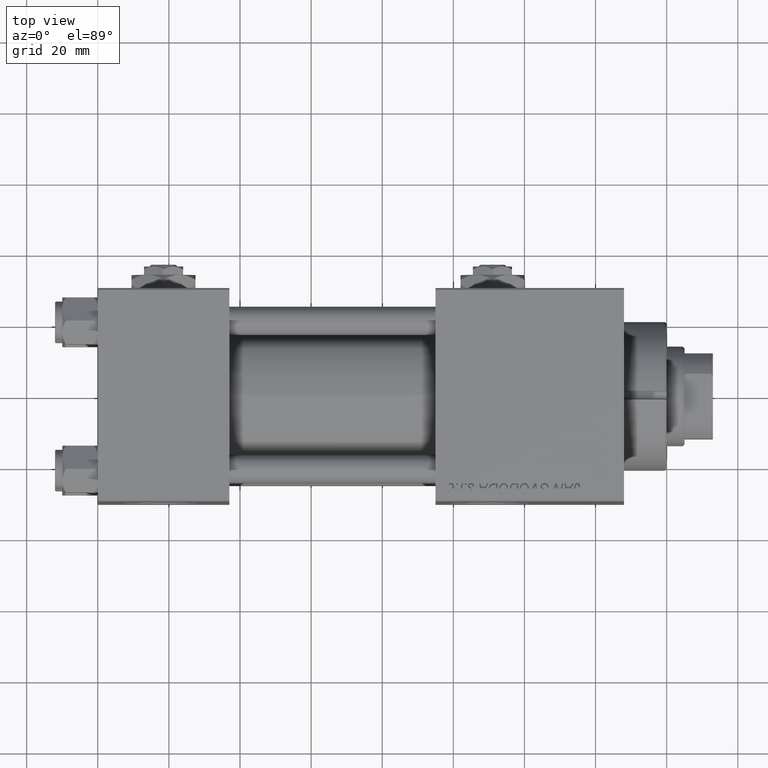
[diagram: clean part render]
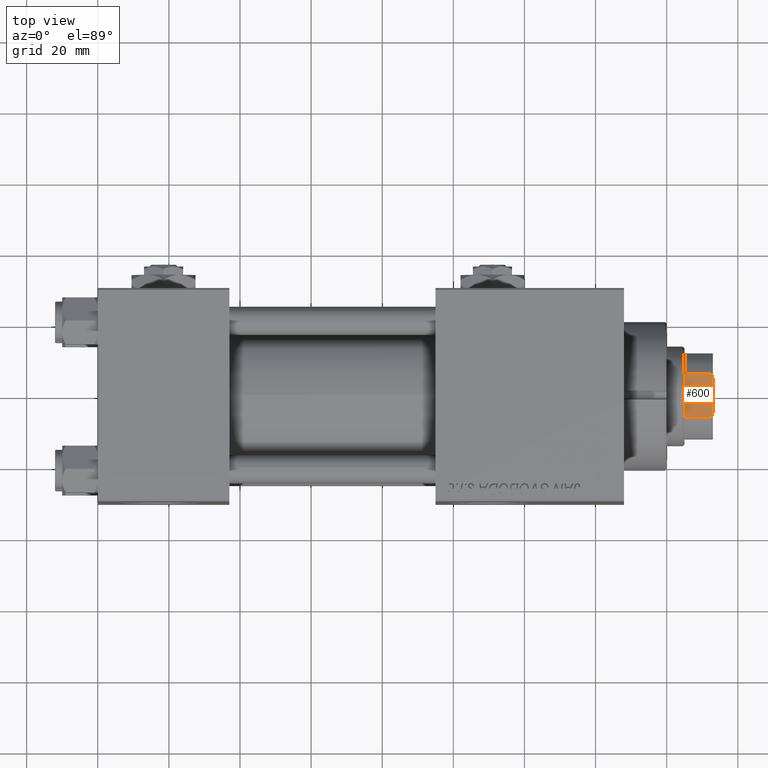
[diagram: same view with one face highlighted and labeled with its STEP entity id]
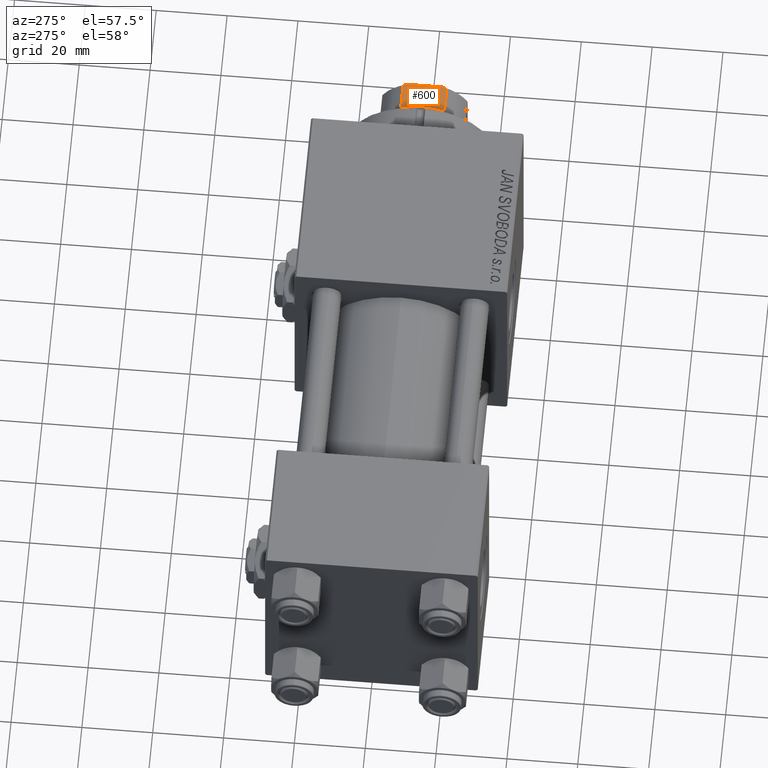
[diagram: same view with one face highlighted and labeled with its STEP entity id]
A machine part, top view. The second image highlights one B-rep face of the part: STEP entity #600.
A second angle (auxiliary view) of the same face is appended — the face is thin or edge-on in the first view.
In plain terms, the highlighted planar face has unit normal (0, 0, -1).
Its self-contained STEP definition (entity closure, byte-faithful):
#236 = VECTOR ( 'NONE', #44726, 1000.000000000000000 ) ;
#600 = ADVANCED_FACE ( 'NONE', ( #39463 ), #14548, .F. ) ;
#1109 = ORIENTED_EDGE ( 'NONE', *, *, #24806, .F. ) ;
#1662 = VERTEX_POINT ( 'NONE', #4682 ) ;
#2913 = VERTEX_POINT ( 'NONE', #3797 ) ;
#3797 = CARTESIAN_POINT ( 'NONE',  ( -5.000000000000031086, -12.00000000000000355, 136.0000000000000000 ) ) ;
#3947 = EDGE_CURVE ( 'NONE', #2913, #1662, #38028, .T. ) ;
#4682 = CARTESIAN_POINT ( 'NONE',  ( -6.184658438426496652, -11.99999999999999645, 135.5000000000000284 ) ) ;
#6571 = DIRECTION ( 'NONE',  ( 0.000000000000000000, -0.000000000000000000, 1.000000000000000000 ) ) ;
#7087 = DIRECTION ( 'NONE',  ( 0.000000000000000000, 1.000000000000000000, 0.000000000000000000 ) ) ;
#9420 = EDGE_CURVE ( 'NONE', #21232, #22285, #16846, .T. ) ;
#12552 = LINE ( 'NONE', #12811, #29946 ) ;
#12811 = CARTESIAN_POINT ( 'NONE',  ( -6.184658438426496652, -11.99999999999999645, -0.001000000000001000089 ) ) ;
#13198 = VERTEX_POINT ( 'NONE', #19895 ) ;
#13618 = CARTESIAN_POINT ( 'NONE',  ( -11.99999999999999822, -12.00000000000000355, 136.0000000000000000 ) ) ;
#13880 = CARTESIAN_POINT ( 'NONE',  ( -6.184658438426496652, -11.99999999999999645, 135.5000000000000284 ) ) ;
#14548 = PLANE ( 'NONE',  #33730 ) ;
#16361 = EDGE_CURVE ( 'NONE', #25564, #1662, #12552, .T. ) ;
#16846 = B_SPLINE_CURVE_WITH_KNOTS ( 'NONE', 3,
 ( #17844, #33499, #29516, #34025 ),
 .UNSPECIFIED., .F., .F.,
 ( 4, 4 ),
 ( 0.000000000000000000, 0.001285852097146072308 ),
 .UNSPECIFIED. ) ;
#17256 = EDGE_LOOP ( 'NONE', ( #34148, #29389, #1109, #31270, #39547, #41319 ) ) ;
#17844 = CARTESIAN_POINT ( 'NONE',  ( 6.184658438426496652, -11.99999999999999645, 135.5000000000000284 ) ) ;
#18602 = CARTESIAN_POINT ( 'NONE',  ( 5.000000000000053291, -12.00000000000000355, 136.0000000000000000 ) ) ;
#19895 = CARTESIAN_POINT ( 'NONE',  ( 6.184658438426496652, -11.99999999999999645, 128.0000000000000853 ) ) ;
#21232 = VERTEX_POINT ( 'NONE', #39980 ) ;
#21411 = VECTOR ( 'NONE', #28171, 1000.000000000000000 ) ;
#22004 = EDGE_CURVE ( 'NONE', #13198, #21232, #31897, .T. ) ;
#22285 = VERTEX_POINT ( 'NONE', #18602 ) ;
#24806 = EDGE_CURVE ( 'NONE', #2913, #22285, #40943, .T. ) ;
#25564 = VERTEX_POINT ( 'NONE', #47738 ) ;
#28171 = DIRECTION ( 'NONE',  ( -0.000000000000000000, -0.000000000000000000, 1.000000000000000000 ) ) ;
#28535 = LINE ( 'NONE', #52171, #236 ) ;
#29389 = ORIENTED_EDGE ( 'NONE', *, *, #9420, .T. ) ;
#29516 = CARTESIAN_POINT ( 'NONE',  ( 5.400255697127826160, -12.00000000000000355, 135.8460555011047006 ) ) ;
#29524 = DIRECTION ( 'NONE',  ( -0.000000000000000000, -0.000000000000000000, 1.000000000000000000 ) ) ;
#29535 = DIRECTION ( 'NONE',  ( 1.000000000000000000, 0.000000000000000000, 0.000000000000000000 ) ) ;
#29946 = VECTOR ( 'NONE', #29524, 1000.000000000000000 ) ;
#31270 = ORIENTED_EDGE ( 'NONE', *, *, #3947, .T. ) ;
#31897 = LINE ( 'NONE', #51562, #21411 ) ;
#33499 = CARTESIAN_POINT ( 'NONE',  ( 5.794808544282259888, -11.99999999999999645, 135.6785991435214385 ) ) ;
#33730 = AXIS2_PLACEMENT_3D ( 'NONE', #42935, #7087, #6571 ) ;
#34025 = CARTESIAN_POINT ( 'NONE',  ( 5.000000000000053291, -12.00000000000000355, 136.0000000000000000 ) ) ;
#34037 = CARTESIAN_POINT ( 'NONE',  ( -5.400255697127810173, -12.00000000000000355, 135.8460555011047006 ) ) ;
#34148 = ORIENTED_EDGE ( 'NONE', *, *, #22004, .T. ) ;
#37752 = CARTESIAN_POINT ( 'NONE',  ( -5.794808544282252782, -12.00000000000000355, 135.6785991435214385 ) ) ;
#38028 = B_SPLINE_CURVE_WITH_KNOTS ( 'NONE', 3,
 ( #50499, #34037, #37752, #13880 ),
 .UNSPECIFIED., .F., .F.,
 ( 4, 4 ),
 ( 0.000000000000000000, 0.001285852097146092258 ),
 .UNSPECIFIED. ) ;
#39463 = FACE_OUTER_BOUND ( 'NONE', #17256, .T. ) ;
#39547 = ORIENTED_EDGE ( 'NONE', *, *, #16361, .F. ) ;
#39980 = CARTESIAN_POINT ( 'NONE',  ( 6.184658438426496652, -11.99999999999999645, 135.5000000000000284 ) ) ;
#40943 = LINE ( 'NONE', #13618, #46079 ) ;
#41319 = ORIENTED_EDGE ( 'NONE', *, *, #47807, .T. ) ;
#42935 = CARTESIAN_POINT ( 'NONE',  ( -11.99999999999999822, -12.00000000000000355, 136.0000000000000000 ) ) ;
#44726 = DIRECTION ( 'NONE',  ( 1.000000000000000000, 0.000000000000000000, 0.000000000000000000 ) ) ;
#46079 = VECTOR ( 'NONE', #29535, 1000.000000000000000 ) ;
#47738 = CARTESIAN_POINT ( 'NONE',  ( -6.184658438426496652, -11.99999999999999645, 128.0000000000000853 ) ) ;
#47807 = EDGE_CURVE ( 'NONE', #25564, #13198, #28535, .T. ) ;
#50499 = CARTESIAN_POINT ( 'NONE',  ( -5.000000000000031086, -12.00000000000000355, 136.0000000000000000 ) ) ;
#51562 = CARTESIAN_POINT ( 'NONE',  ( 6.184658438426496652, -11.99999999999999645, -0.001000000000001000089 ) ) ;
#52171 = CARTESIAN_POINT ( 'NONE',  ( -11.99999999999999822, -12.00000000000000355, 128.0000000000000000 ) ) ;